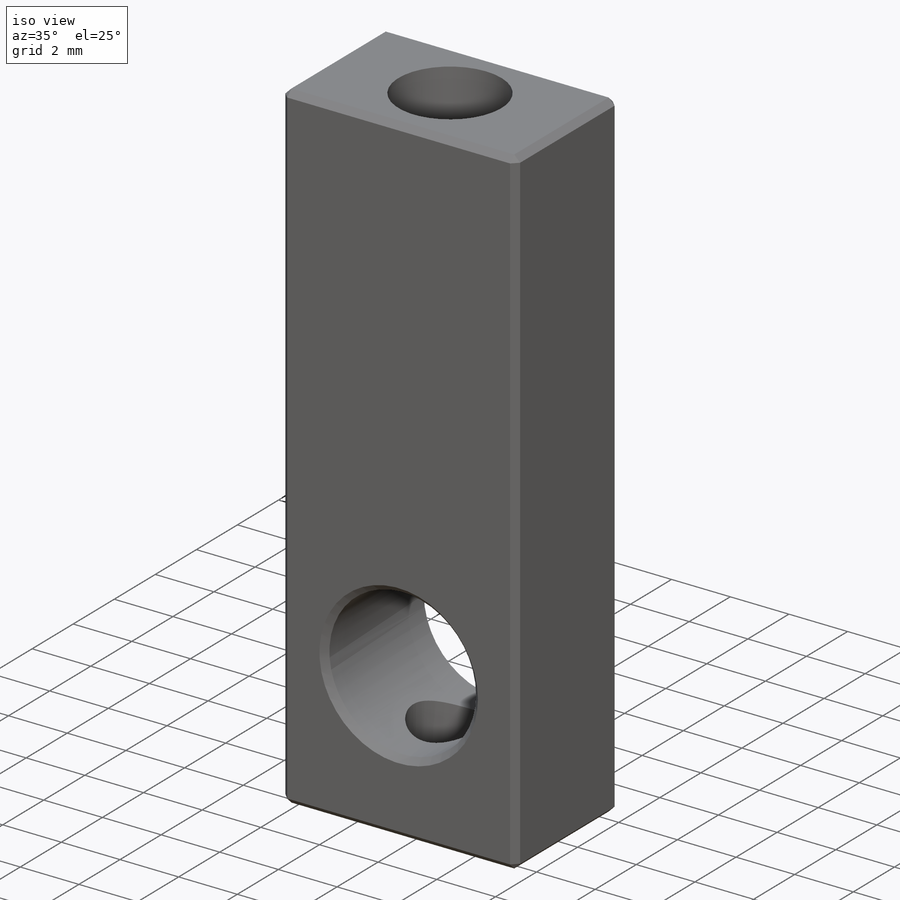
[diagram: iso view]
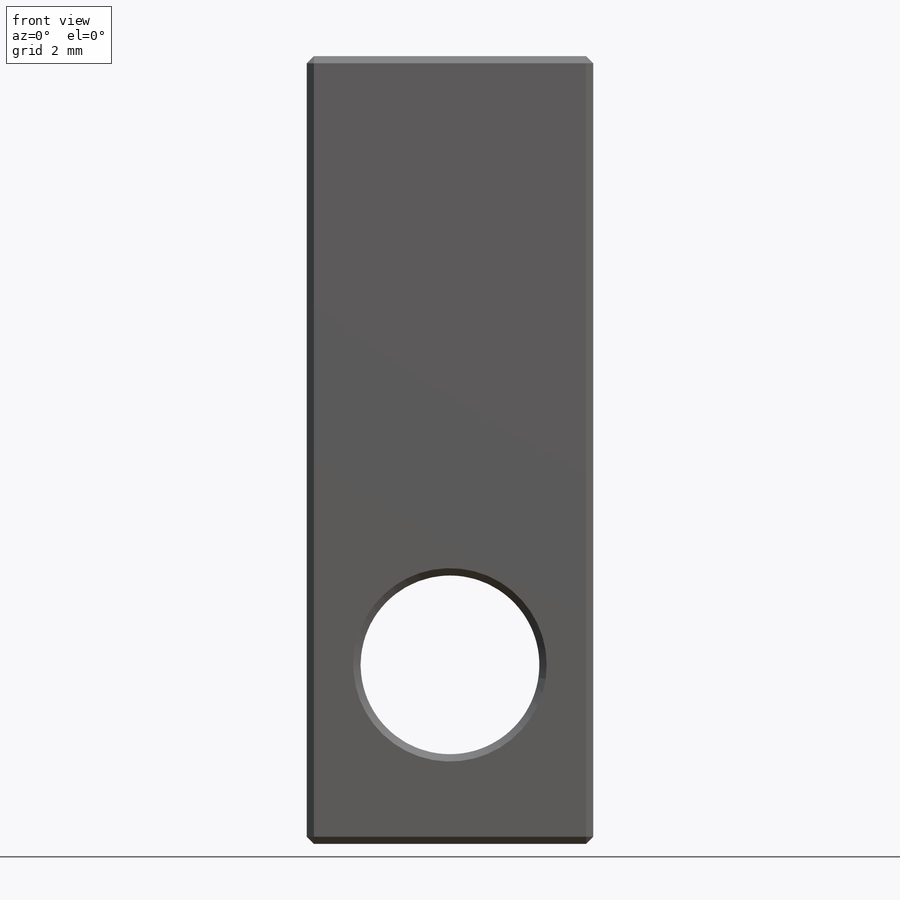
[diagram: front view]
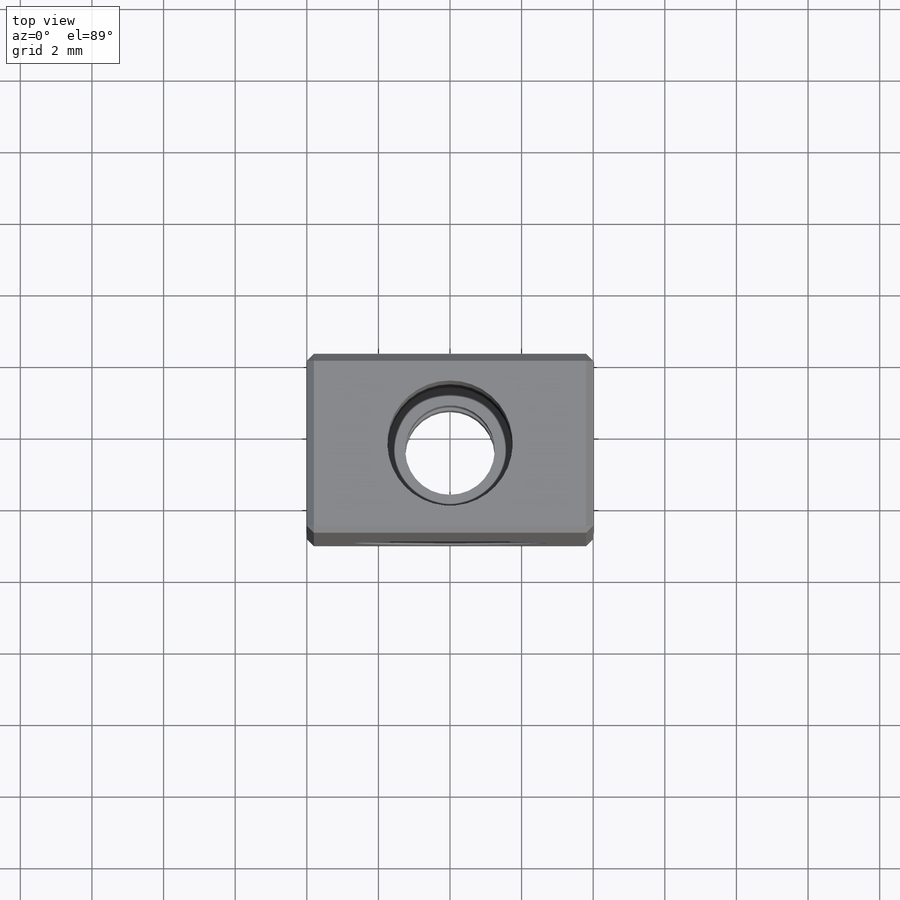
[diagram: top view]
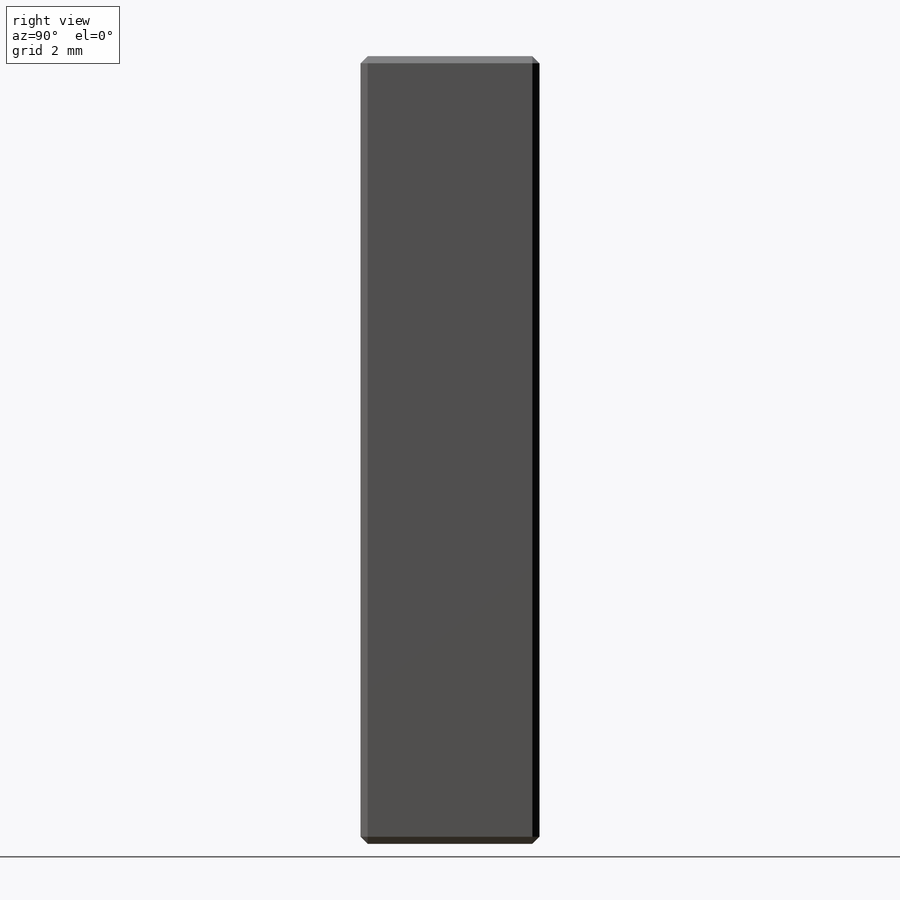
[diagram: right view]
SOLIDWORKS PART (.sldprt)
format: sldprt  version: not decoded by parser v0  size: 317,952 bytes
history: native  units: mm
features: sketch x6, plane x4, hole x2, thread x2, chamfer x2, material x1, extrude x1, cut_extrude x1, move_body x1 (+9 scaffold rows collapsed; 1 parser-record rows omitted)
feature tree (30):
  scaffold x9  (default folders/planes/origin — collapsed)
  material  "1.0037 (S235JR)"
  plane  "Vorne"
  plane  "Oben"
  plane  "Rechts"
  sketch  "Skizze1"  dims[D4=5.0mm D1=4.0mm D2=8.0mm D3=5.0mm D5=17.0mm]
  extrude  "Aufsatz-Linear austragen1"  Depth=5mm
  hole  "M3 Gewindebohrung1"  Diameter=2.5mm Depth=2.5mm
  sketch  "Skizze3"  dims[D1=2.5mm]
  sketch  "Skizze2"  dims[hole-wizard template sketch: 60 standard entries collapsed; hole parameters kept: c18.Bohrungstiefe=2.5mm]
  thread  "Bohrungsgewinde1"  Diameter=3mm  [1 undecoded]
  chamfer  "Fase1"  Distance=0.2mm Angle=45deg
  chamfer  "Fase2"  Distance=0.2mm Angle=45deg
  plane  "Ebene1"  Offset=6mm
  sketch  "Skizze4"  dims[D1=3.5mm D2=2.5mm]
  cut_extrude  "Schnitt-Linear austragen1"  [1 undecoded]
  hole  "M3 Gewindebohrung2"  Diameter=2.5mm Depth=3.5mm
  sketch  "Skizze6"
  sketch  "Skizze5"  dims[hole-wizard template sketch: 60 standard entries collapsed; hole parameters kept: c18.Bohrungstiefe=3.5mm]
  thread  "Bohrungsgewinde2"  Diameter=3mm  [1 undecoded]
  parser-record x1  (decoder bookkeeping rows leaked as tree rows — omitted from the tree; the rows remain in map.json)
  move_body  "Körper-Verschieben/Kopieren1"
decode coverage: 12 of 15 modeling features carry decoded parameters
note: ~ marks probable driven/reference dimensions
note: 3 parameter values undecoded
note: suppression state not decoded; provenance and decode notes live in map.json
